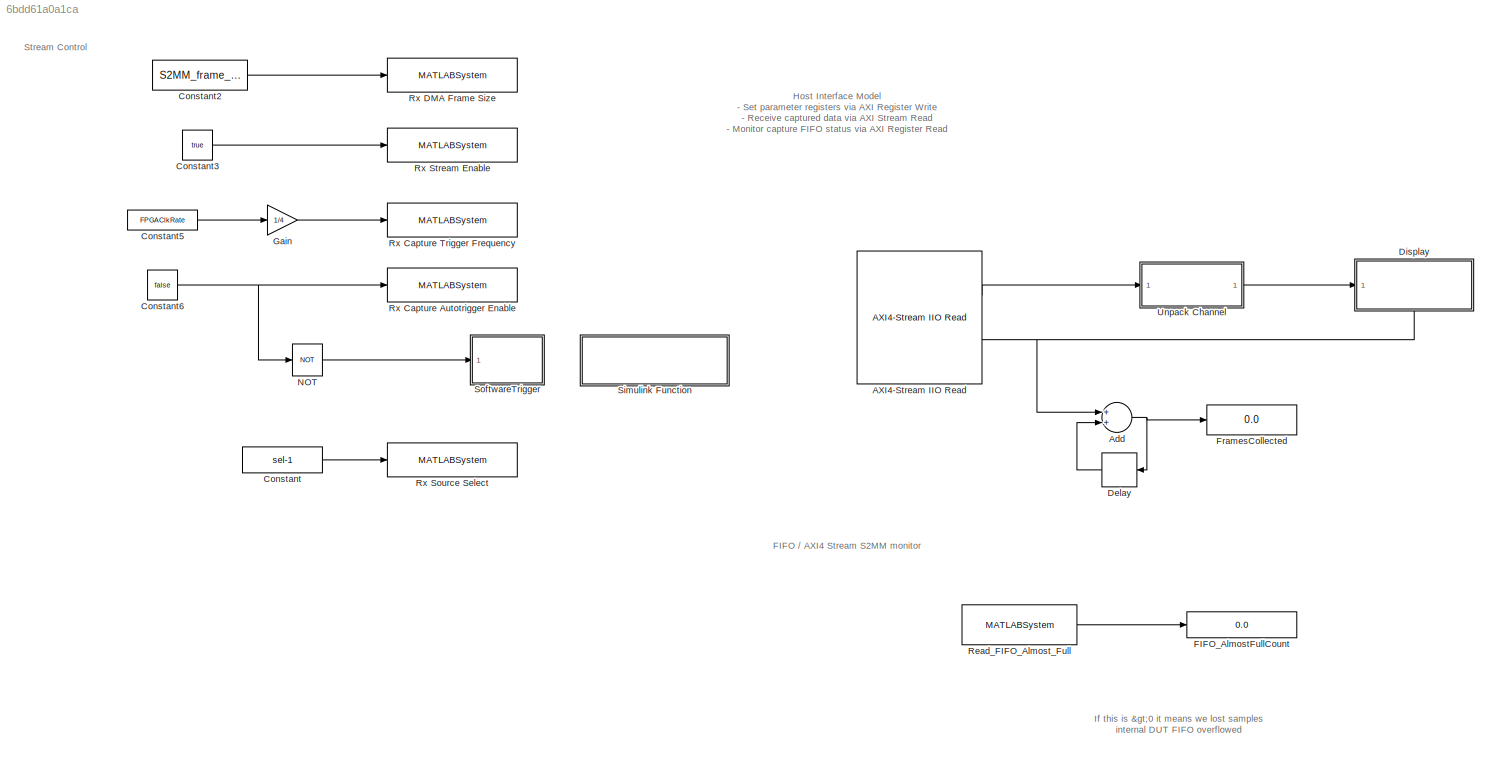
MODEL slx_6bdd61a0a1ca
KIND model
CONFIG AbsTol = auto
CONFIG EnableMultiTasking = on
CONFIG FixedStep = TsHost
CONFIG InitFcn = host_io_model_init
CONFIG MaxStep = auto
CONFIG MinStep = auto
CONFIG RelTol = 1e-3
CONFIG SampleTimeConstraint = Unconstrained
CONFIG Solver = FixedStepAuto
CONFIG SolverName = FixedStepAuto
CONFIG StartTime = 0.0
CONFIG StopTime = inf
BLOCK [Reference] AXI4-Stream IIO Read  REF=psp_axi_iio_lib/AXI4-Stream IIO Read
  Ports = [0, 2]
  SourceBlock = psp_axi_iio_lib/AXI4-Stream IIO Read
  SourceProductName = IIO AXI - PSP
  SourceType = pspshared.libiio.axistream.read
BLOCK [Sum] Add
  AccumDataTypeStr = uint32
  InputSameDT = off
  OutDataTypeStr = uint32
  Ports = [2, 1]
  SaturateOnIntegerOverflow = off
BLOCK [Constant] Constant
  OutDataTypeStr = fixdt(0,1,0)
  SampleTime = -1
  Value = sel-1
BLOCK [Constant] Constant2
  OutDataTypeStr = uint32
  SampleTime = -1
  Value = S2MM_frame_size
BLOCK [Constant] Constant3
  SampleTime = -1
  Value = true
BLOCK [Constant] Constant5
  OutDataTypeStr = uint32
  SampleTime = -1
  Value = FPGAClkRate
BLOCK [Constant] Constant6
  SampleTime = -1
  Value = false
BLOCK [Delay] Delay
  DelayLength = 1
  InputPortMap = u0
  Ports = [1, 1]
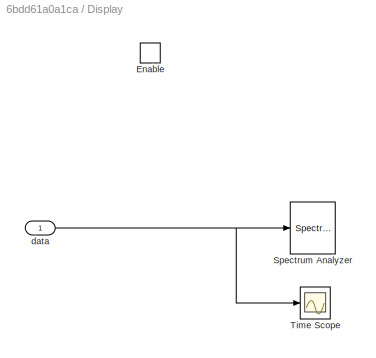
BLOCK [SubSystem] Display
  Ports = [1, 0, 1]
  RequestExecContextInheritance = off
BLOCK [EnablePort] Display/Enable
  Ports = []
BLOCK [SpectrumAnalyzer] Display/Spectrum Analyzer
  Ports = [1]
  ScopeSpecificationString = spbscopes.SpectrumAnalyzerBlockCfg('CurrentConfiguration', extmgr.ConfigurationSet(extmgr.Configuration('Core','General UI',true),extmgr.Configuration('Core','Source UI',true),extmgr.Configuration('Sources','Workspace',false),extmgr.Configuration('Sources','Streaming',false),extmgr.Configuration('Sources','SPTool',false),extmgr.Configuration('Sources','Simulink',false),extmgr.Configuration('Source...<+3081ch>
BLOCK [Scope] Display/Time Scope
  Commented = on
  DefaultConfigurationName = spbscopes.TimeScopeBlockCfg
  Floating = off
  NumInputPorts = 1
  Ports = [1]
  ScopeSpecificationString = spbscopes.TimeScopeBlockCfg('CurrentConfiguration', extmgr.ConfigurationSet(extmgr.Configuration('Core','General UI',true,'FigureColor',[0.156862745098039 0.156862745098039 0.156862745098039]),extmgr.Configuration('Core','Source UI',true),extmgr.Configuration('Sources','WiredSimulink',true),extmgr.Configuration('Visuals','Time Domain',true,'DisplayPropertyDefaults',struct('MinYLimReal','-40887.875...<+1532ch>
  UserDataPersistent = on
BLOCK [Inport] Display/data
  IconDisplay = Port number
BLOCK [Display] FIFO_AlmostFullCount
  Decimation = 1
  Format = long
  Ports = [1]
BLOCK [Display] FramesCollected
  Decimation = 1
  Ports = [1]
BLOCK [Gain] Gain
  Gain = 1/4
  ParamDataTypeStr = Inherit: Inherit via internal rule
  SaturateOnIntegerOverflow = off
BLOCK [Logic] NOT
  AllPortsSameDT = off
  IconShape = distinctive
  Operator = NOT
  OutDataTypeStr = boolean
  Ports = [1, 1]
BLOCK [MATLABSystem] Read_FIFO_Almost_Full
  AddressOffset = REG_MAP.AXI4_AFIFO_Full
  AddressOffsetSrc = Property
  AttributesFormatString = %<AddressOffset>
  DataType = uint32
  FixedPointDataTypeStr = fixdt(0,14,0)
  IPAddress = IPAddress
  LockScale = off
  MaskDisplay = color('white');\nplot([100,100,100,100],[100,100,100,100]);\nplot([0,0,0,0],[0,0,0,0]);\ncolor('black');\ntext(50, 48,'AXI4 Register\nIIO Read', 'horizontalAlignment','center','verticalAlignment','middle');\ncolor('blue');\ntext(95, 99, 'PSP', 'horizontalAlignment', 'right','verticalAlignment','top');\ncolor('black');\nport_label('output',1, 'Data')
  MaskType = pspshared.libiio.aximm.read
  Ports = [0, 1]
  System = pspshared.libiio.aximm.read
  devName = mwipcore0:mmrd0
  enIO = on
  outputVectorLength = 2
  vectorModeEn = off
BLOCK [MATLABSystem] Rx Capture Autotrigger Enable
  AddressOffset = REG_MAP.rx_auto_trig_en
  AddressOffsetSrc = Property
  AttributesFormatString = %<AddressOffset>
  IPAddress = IPAddress
  MaskDisplay = color('white');\nplot([100,100,100,100],[100,100,100,100]);\nplot([0,0,0,0],[0,0,0,0]);\ncolor('black');\ntext(50, 48,'AXI4 Register\nIIO Write', 'horizontalAlignment','center','verticalAlignment','middle');\ncolor('blue');\ntext(95, 99, 'PSP', 'horizontalAlignment', 'right','verticalAlignment','top');\ncolor('black');\nport_label('input',1, 'Data')  <repeated x6 — deduplicated; at blocks: Rx Capture Autotrigger Enable, Rx Capture Trigger Frequency, Rx DMA Frame Size, Rx Source Select, Rx Stream Enable, AXI4_AutoTrig>
  MaskType = pspshared.libiio.aximm.write
  Ports = [1]
  System = pspshared.libiio.aximm.write
  devName = mwipcore0:mmwr0
  enIO = on
  vectorModeEn = off
BLOCK [MATLABSystem] Rx Capture Trigger Frequency
  AddressOffset = REG_MAP.rx_trigger_freq
  AddressOffsetSrc = Property
  AttributesFormatString = %<AddressOffset>
  IPAddress = IPAddress
  MaskType = pspshared.libiio.aximm.write
  Ports = [1]
  System = pspshared.libiio.aximm.write
  devName = mwipcore0:mmwr0
  enIO = on
  vectorModeEn = off
BLOCK [MATLABSystem] Rx DMA Frame Size
  AddressOffset = REG_MAP.rx_frame_size
  AddressOffsetSrc = Property
  AttributesFormatString = %<AddressOffset>
  IPAddress = IPAddress
  MaskType = pspshared.libiio.aximm.write
  Ports = [1]
  System = pspshared.libiio.aximm.write
  devName = mwipcore0:mmwr0
  enIO = on
  vectorModeEn = off
BLOCK [MATLABSystem] Rx Source Select
  AddressOffset = REG_MAP.rx_src_select
  AddressOffsetSrc = Property
  AttributesFormatString = %<AddressOffset>
  IPAddress = IPAddress
  MaskType = pspshared.libiio.aximm.write
  Ports = [1]
  System = pspshared.libiio.aximm.write
  devName = mwipcore0:mmwr0
  enIO = on
  vectorModeEn = off
BLOCK [MATLABSystem] Rx Stream Enable
  AddressOffset = REG_MAP.rx_stream_en
  AddressOffsetSrc = Property
  AttributesFormatString = %<AddressOffset>
  IPAddress = IPAddress
  MaskType = pspshared.libiio.aximm.write
  Ports = [1]
  System = pspshared.libiio.aximm.write
  devName = mwipcore0:mmwr0
  enIO = on
  vectorModeEn = off
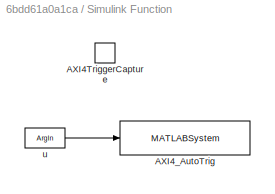
BLOCK [SubSystem] Simulink Function
  Ports = [0, 0, 0, 1]
  PropExecContextOutsideSubsystem = on
  RequestExecContextInheritance = off
  ShowPortLabels = SignalName
  TreatAsAtomicUnit = on
BLOCK [TriggerPort] Simulink Function/AXI4TriggerCapture
  FunctionName = AXI4TriggerCapture
  IsSimulinkFunction = on
  Ports = []
  StatesWhenEnabling = held
  TriggerType = function-call
  VariantControl = (inherit)
BLOCK [MATLABSystem] Simulink Function/AXI4_AutoTrig
  AddressOffset = REG_MAP.rx_capture_trig
  AddressOffsetSrc = Property
  AttributesFormatString = %<AddressOffset>
  IPAddress = IPAddress
  MaskType = pspshared.libiio.aximm.write
  Ports = [1]
  System = pspshared.libiio.aximm.write
  devName = mwipcore0:mmwr0
  enIO = on
  vectorModeEn = off
BLOCK [ArgIn] Simulink Function/u
  ArgumentName = u
  DisableCoverage = on
  OutDataTypeStr = boolean
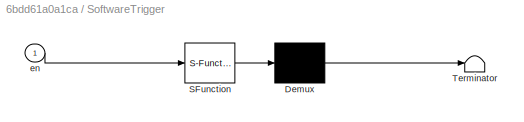
BLOCK [SubSystem] SoftwareTrigger
  ErrorFcn = Stateflow.Translate.translate
  PermitHierarchicalResolution = ExplicitOnly
  Ports = [1]
  RequestExecContextInheritance = off
  SFBlockType = MATLAB Function
  TreatAsAtomicUnit = on
BLOCK [Demux] SoftwareTrigger/ Demux 
  Outputs = 1
  Ports = [1, 1]
BLOCK [S-Function] SoftwareTrigger/ SFunction 
  EnableBusSupport = on
  FunctionName = sf_sfun
  PortCounts = [1 1]
  Ports = [1, 1]
  SFcnIsStateOwnerBlock = off
  SFunctionDeploymentMode = off
  Tag = Stateflow S-Function 1
BLOCK [Terminator] SoftwareTrigger/ Terminator 
BLOCK [Inport] SoftwareTrigger/en
  IconDisplay = Port number
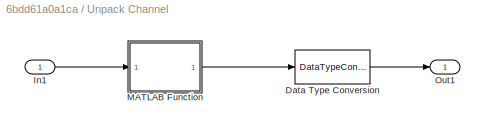
BLOCK [SubSystem] Unpack Channel
  Ports = [1, 1]
  RequestExecContextInheritance = off
BLOCK [DataTypeConversion] Unpack Channel/Data Type Conversion
  ConvertRealWorld = Stored Integer (SI)
  OutDataTypeStr = int16
  RndMeth = Floor
  SaturateOnIntegerOverflow = off
BLOCK [Inport] Unpack Channel/In1
  IconDisplay = Port number
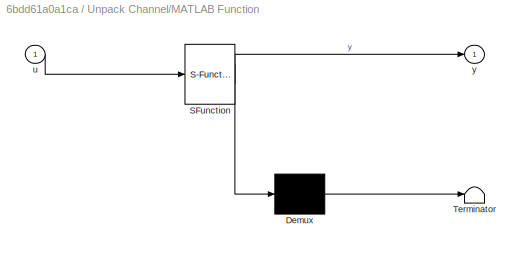
BLOCK [SubSystem] Unpack Channel/MATLAB Function
  ErrorFcn = Stateflow.Translate.translate
  PermitHierarchicalResolution = ExplicitOnly
  Ports = [1, 1]
  RequestExecContextInheritance = off
  SFBlockType = MATLAB Function
  TreatAsAtomicUnit = on
BLOCK [Demux] Unpack Channel/MATLAB Function/ Demux 
  Outputs = 1
  Ports = [1, 1]
BLOCK [S-Function] Unpack Channel/MATLAB Function/ SFunction 
  EnableBusSupport = on
  FunctionName = sf_sfun
  Parameters = chan
  PortCounts = [1 2]
  Ports = [1, 2]
  SFcnIsStateOwnerBlock = off
  SFunctionDeploymentMode = off
  Tag = Stateflow S-Function 2
BLOCK [Terminator] Unpack Channel/MATLAB Function/ Terminator 
BLOCK [Inport] Unpack Channel/MATLAB Function/u
  IconDisplay = Port number
BLOCK [Outport] Unpack Channel/MATLAB Function/y
  IconDisplay = Port number
  VectorParamsAs1DForOutWhenUnconnected = off
BLOCK [Outport] Unpack Channel/Out1
  IconDisplay = Port number
  VectorParamsAs1DForOutWhenUnconnected = off
ANNOTATION (root): Host Interface Model - Set parameter registers via AXI Register Write - Receive captured data via AXI Stream Read - Monitor capture FIFO status via AXI Register Read
ANNOTATION (root): If this is >0 it means we lost samples internal DUT FIFO overflowed
ANNOTATION (root): FIFO / AXI4 Stream S2MM monitor
ANNOTATION (root): Stream Control
LINE AXI4-Stream IIO Read:1 -> Unpack Channel:1
NET AXI4-Stream IIO Read:2 -> Add:1, Display:enable
NET Add:1 -> Delay:1, FramesCollected:1
LINE Constant2:1 -> Rx DMA Frame Size:1
LINE Constant3:1 -> Rx Stream Enable:1
LINE Constant5:1 -> Gain:1
NET Constant6:1 -> NOT:1, Rx Capture Autotrigger Enable:1
LINE Constant:1 -> Rx Source Select:1
LINE Delay:1 -> Add:2
NET Display/data:1 -> Display/Spectrum Analyzer:1, Display/Time Scope:1
LINE Gain:1 -> Rx Capture Trigger Frequency:1
LINE NOT:1 -> SoftwareTrigger:1
LINE Read_FIFO_Almost_Full:1 -> FIFO_AlmostFullCount:1
LINE Simulink Function/u:1 -> Simulink Function/AXI4_AutoTrig:1
LINE Unpack Channel/Data Type Conversion:1 -> Unpack Channel/Out1:1
LINE Unpack Channel/In1:1 -> Unpack Channel/MATLAB Function:1
LINE Unpack Channel/MATLAB Function:1 -> Unpack Channel/Data Type Conversion:1
LINE Unpack Channel:1 -> Display:1
note: NET lines group one-source signal fan-out (src -> all destinations, sorted); 1:1 wires keep LINE
CHART SoftwareTrigger states=1 transitions=1
  STATE_LABEL 'eML_blk_kernel()'
  STATE_LABEL 'SCRIPT:\nfunction TriggerBlk(en)\n\nif en\n    AXI4TriggerCapture(true);\n    AXI4TriggerCapture(false);\nend\n\nend\n\n'
CHART Unpack Channel/MATLAB Function states=1 transitions=1
  STATE_LABEL 'eML_blk_kernel()'
  STATE_LABEL 'SCRIPT:\nfunction y = fcn(u, chan)\n\nshiftRe = (chan-1)*32;\nshiftIm  = shiftRe+16;\nre = uint16(bitsliceget(bitshift(u,-shiftRe), 16,1));\nim = uint16(bitsliceget(bitshift(u,-shiftIm), 16,1));\n\ny = complex(re,im);'
